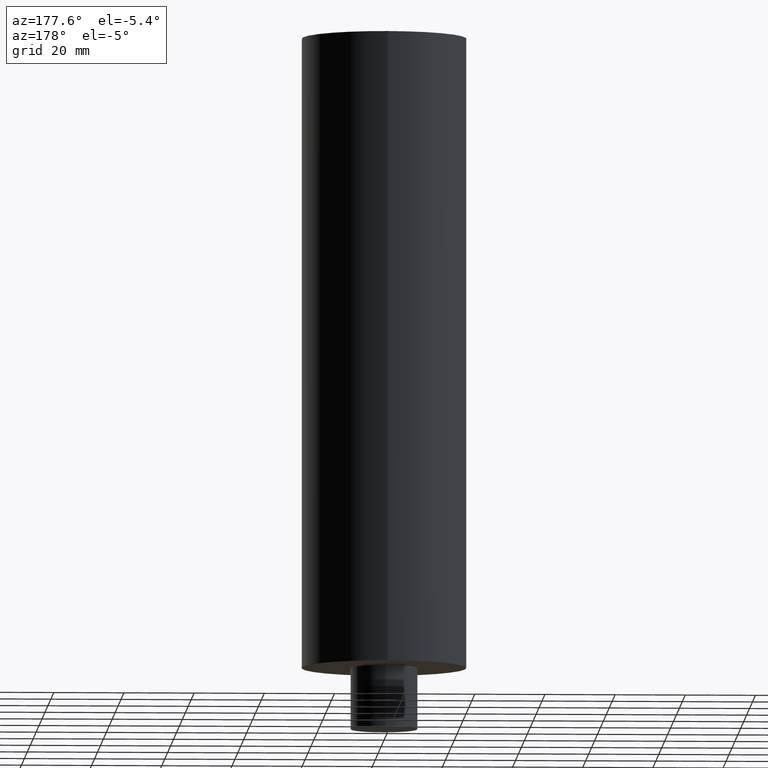
[diagram: clean part render]
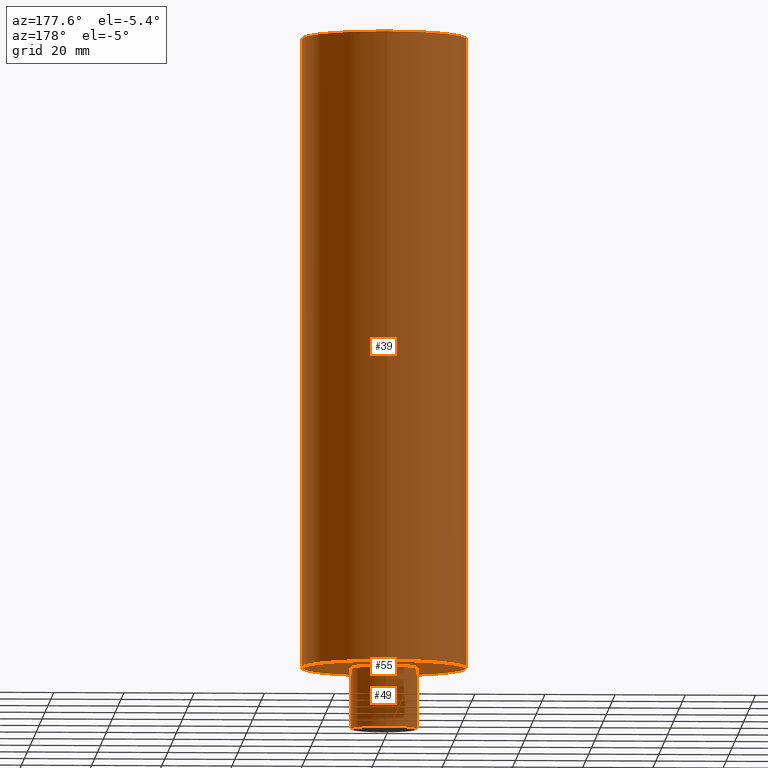
[diagram: same view with one multi-face feature highlighted, each face labeled with its STEP entity id]
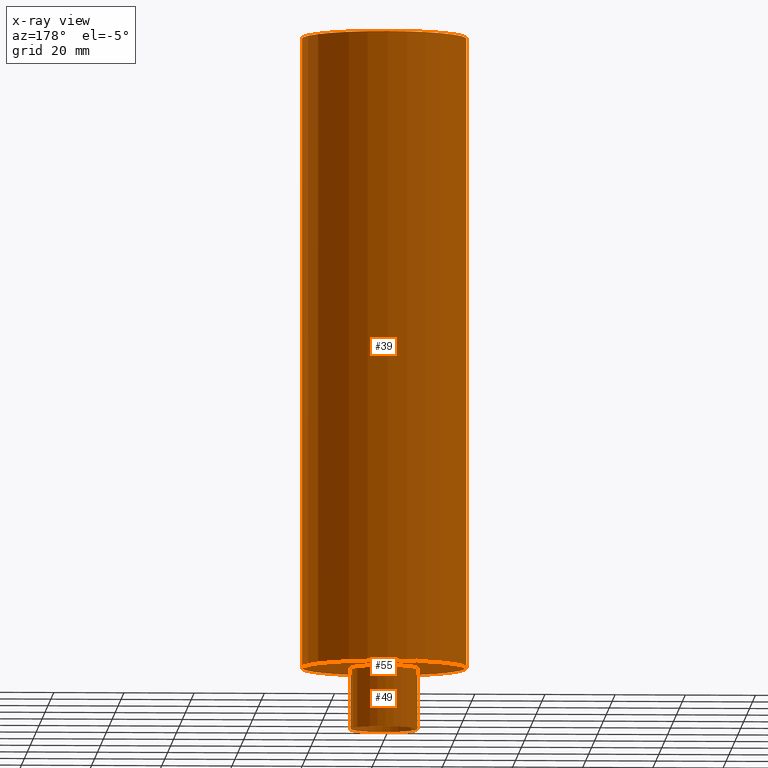
[diagram: x-ray of the same camera — body ghosted, the whole feature saturated]
A machine part, auxiliary view. The highlighted faces form ONE feature: a stepped (counterbored) hole: 2 coaxial cylindrical walls of radii 9.525 -> 23.5 mm joined by 1 annular planar shoulder face(s). The faces share edges in the B-rep.
The next image is the same camera in x-ray: the body ghosted and the whole hole feature saturated, so the bore chain is visible through the body.
Their STEP definitions:
[1] entity #39 (Cylinder):
#36=EDGE_CURVE('Unnamed[1]',#79,#79,#80,.T.);
#39=ADVANCED_FACE('Unnamed[1]',(#83,#84),#85,.T.);
#46=EDGE_CURVE('Unnamed[1]',#94,#94,#95,.T.);
#79=VERTEX_POINT('',#125);
#80=CIRCLE('',#126,23.5);
#83=FACE_BOUND('',#130,.T.);
#84=FACE_BOUND('',#131,.T.);
#85=CYLINDRICAL_SURFACE('',#132,23.5);
#94=VERTEX_POINT('',#144);
#95=CIRCLE('',#145,23.5);
#125=CARTESIAN_POINT('',(1.10218211923262E-014,23.5,-180.0));
#126=AXIS2_PLACEMENT_3D('',#170,#171,#172);
#130=EDGE_LOOP('',(#174));
#131=EDGE_LOOP('',(#175));
#132=AXIS2_PLACEMENT_3D('',#176,#177,#178);
#144=CARTESIAN_POINT('',(-2.8965986363584E-031,23.5,2.87791997799628E-015));
#145=AXIS2_PLACEMENT_3D('',#187,#188,#189);
#170=CARTESIAN_POINT('',(1.10218211923262E-014,2.20436423846524E-014,-180.0));
#171=DIRECTION('',(-6.12323399573677E-017,-1.22464679914735E-016,1.0));
#172=DIRECTION('',(-1.23259516440783E-032,1.0,1.22464679914735E-016));
#174=ORIENTED_EDGE('',*,*,#46,.F.);
#175=ORIENTED_EDGE('',*,*,#36,.T.);
#176=CARTESIAN_POINT('',(5.51091059616309E-015,1.10218211923262E-014,-90.0));
#177=DIRECTION('',(-6.12323399573677E-017,-1.22464679914735E-016,1.0));
#178=DIRECTION('',(-1.23259516440783E-032,1.0,1.22464679914735E-016));
#187=CARTESIAN_POINT('',(0.0,0.0,0.0));
#188=DIRECTION('',(-6.12323399573677E-017,-1.22464679914735E-016,1.0));
#189=DIRECTION('',(-1.23259516440783E-032,1.0,1.22464679914735E-016));
[2] entity #49 (Cylinder):
#34=EDGE_CURVE('Unnamed[1]',#76,#76,#77,.T.);
#41=EDGE_CURVE('Unnamed[1]',#87,#87,#88,.T.);
#49=ADVANCED_FACE('Unnamed[1]',(#98,#99),#100,.T.);
#76=VERTEX_POINT('',#121);
#77=CIRCLE('',#122,9.525);
#87=VERTEX_POINT('',#135);
#88=CIRCLE('',#136,9.525);
#98=FACE_BOUND('',#149,.T.);
#99=FACE_BOUND('',#150,.T.);
#100=CYLINDRICAL_SURFACE('',#151,9.525);
#121=CARTESIAN_POINT('',(1.20933871415801E-014,9.52500000000002,-197.5));
#122=AXIS2_PLACEMENT_3D('',#167,#168,#169);
#135=CARTESIAN_POINT('',(1.10218211923262E-014,9.52500000000002,-180.0));
#136=AXIS2_PLACEMENT_3D('',#179,#180,#181);
#149=EDGE_LOOP('',(#191));
#150=EDGE_LOOP('',(#192));
#151=AXIS2_PLACEMENT_3D('',#193,#194,#195);
#167=CARTESIAN_POINT('',(1.20933871415801E-014,2.41867742831602E-014,-197.5));
#168=DIRECTION('',(-6.12323399573677E-017,-1.22464679914735E-016,1.0));
#169=DIRECTION('',(-1.23259516440783E-032,1.0,1.22464679914735E-016));
#179=CARTESIAN_POINT('',(1.10218211923262E-014,2.20436423846524E-014,-180.0));
#180=DIRECTION('',(-6.12323399573677E-017,-1.22464679914735E-016,1.0));
#181=DIRECTION('',(-1.23259516440783E-032,1.0,1.22464679914735E-016));
#191=ORIENTED_EDGE('',*,*,#41,.F.);
#192=ORIENTED_EDGE('',*,*,#34,.T.);
#193=CARTESIAN_POINT('',(1.15576041669531E-014,2.31152083339063E-014,-188.75));
#194=DIRECTION('',(-6.12323399573677E-017,-1.22464679914735E-016,1.0));
#195=DIRECTION('',(-1.23259516440783E-032,1.0,1.22464679914735E-016));
[3] entity #55 (Plane):
#36=EDGE_CURVE('Unnamed[1]',#79,#79,#80,.T.);
#41=EDGE_CURVE('Unnamed[1]',#87,#87,#88,.T.);
#55=ADVANCED_FACE('Unnamed[1]',(#106,#107),#108,.T.);
#79=VERTEX_POINT('',#125);
#80=CIRCLE('',#126,23.5);
#87=VERTEX_POINT('',#135);
#88=CIRCLE('',#136,9.525);
#106=FACE_OUTER_BOUND('',#158,.T.);
#107=FACE_BOUND('',#159,.T.);
#108=PLANE('',#160);
#125=CARTESIAN_POINT('',(1.10218211923262E-014,23.5,-180.0));
#126=AXIS2_PLACEMENT_3D('',#170,#171,#172);
#135=CARTESIAN_POINT('',(1.10218211923262E-014,9.52500000000002,-180.0));
#136=AXIS2_PLACEMENT_3D('',#179,#180,#181);
#158=EDGE_LOOP('',(#198));
#159=EDGE_LOOP('',(#199));
#160=AXIS2_PLACEMENT_3D('',#200,#201,#202);
#170=CARTESIAN_POINT('',(1.10218211923262E-014,2.20436423846524E-014,-180.0));
#171=DIRECTION('',(-6.12323399573677E-017,-1.22464679914735E-016,1.0));
#172=DIRECTION('',(-1.23259516440783E-032,1.0,1.22464679914735E-016));
#179=CARTESIAN_POINT('',(1.10218211923262E-014,2.20436423846524E-014,-180.0));
#180=DIRECTION('',(-6.12323399573677E-017,-1.22464679914735E-016,1.0));
#181=DIRECTION('',(-1.23259516440783E-032,1.0,1.22464679914735E-016));
#198=ORIENTED_EDGE('',*,*,#36,.F.);
#199=ORIENTED_EDGE('',*,*,#41,.T.);
#200=CARTESIAN_POINT('',(1.10218211923262E-014,16.5125,-180.0));
#201=DIRECTION('',(6.12323399573677E-017,1.22464679914735E-016,-1.0));
#202=DIRECTION('',(1.23259516440783E-032,-1.0,-1.22464679914735E-016));